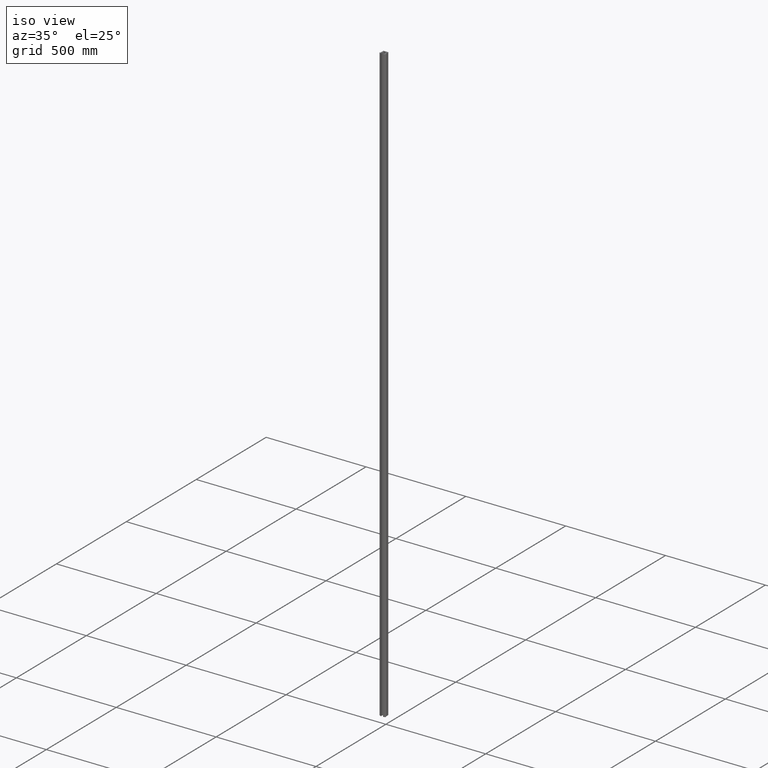
[diagram: clean part render]
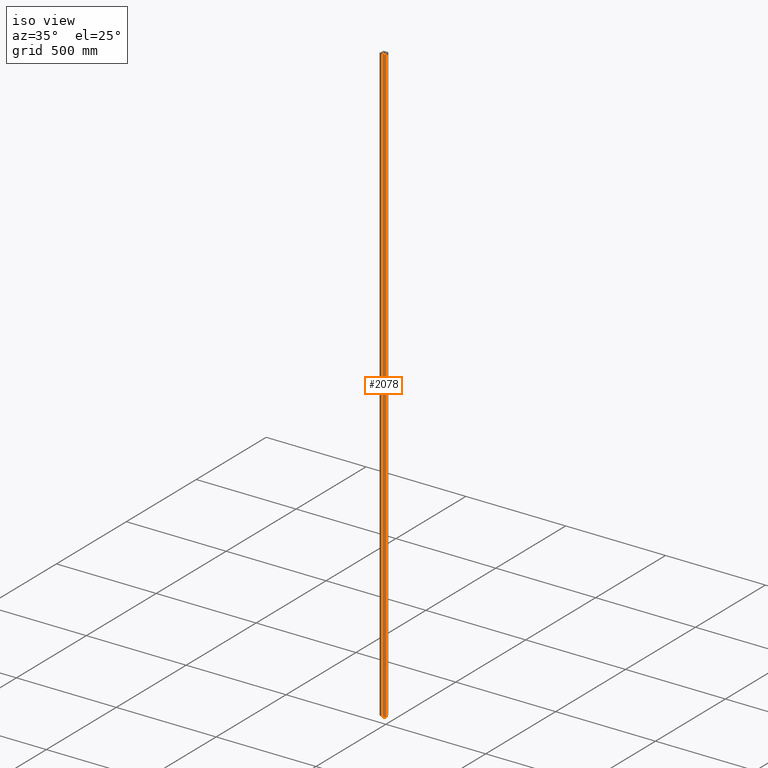
[diagram: same view with one face highlighted and labeled with its STEP entity id]
A machine part, iso view. The second image highlights one B-rep face of the part: STEP entity #2078.
In plain terms, the highlighted cylindrical surface (edge-blend (fillet) strip) has radius 15.3 mm, axis along (0, 0, -1).
Its self-contained STEP definition (entity closure, byte-faithful):
#218 = VERTEX_POINT ( 'NONE', #9190 ) ;
#1305 = CYLINDRICAL_SURFACE ( 'NONE', #21084, 15.29999999999999893 ) ;
#1972 = CARTESIAN_POINT ( 'NONE',  ( 4.543158562682331869, -11.19999999999999574, -1500.000000000000000 ) ) ;
#2078 = ADVANCED_FACE ( 'NONE', ( #17646 ), #1305, .T. ) ;
#2350 = ORIENTED_EDGE ( 'NONE', *, *, #15056, .F. ) ;
#2622 = CARTESIAN_POINT ( 'NONE',  ( 4.543158562682331869, -11.19999999999999574, 1500.000000000000000 ) ) ;
#3300 = DIRECTION ( 'NONE',  ( 0.000000000000000000, 0.000000000000000000, -1.000000000000000000 ) ) ;
#3930 = CIRCLE ( 'NONE', #5585, 15.30000000000000071 ) ;
#4412 = VERTEX_POINT ( 'NONE', #12121 ) ;
#5585 = AXIS2_PLACEMENT_3D ( 'NONE', #1972, #11803, #13375 ) ;
#7516 = CIRCLE ( 'NONE', #15628, 15.30000000000000071 ) ;
#8733 = DIRECTION ( 'NONE',  ( -0.000000000000000000, -0.000000000000000000, -1.000000000000000000 ) ) ;
#8780 = ORIENTED_EDGE ( 'NONE', *, *, #9931, .T. ) ;
#9190 = CARTESIAN_POINT ( 'NONE',  ( 4.674285183693181800, -26.49943808802343526, 1500.000000000000000 ) ) ;
#9931 = EDGE_CURVE ( 'NONE', #16608, #218, #7516, .T. ) ;
#10354 = EDGE_CURVE ( 'NONE', #218, #18435, #19270, .T. ) ;
#11738 = DIRECTION ( 'NONE',  ( -1.000000000000000000, -2.267612386897786884E-16, 0.000000000000000000 ) ) ;
#11803 = DIRECTION ( 'NONE',  ( -0.000000000000000000, -0.000000000000000000, -1.000000000000000000 ) ) ;
#12121 = CARTESIAN_POINT ( 'NONE',  ( 16.04594942167971183, -21.28839940001218878, -1500.000000000000000 ) ) ;
#12860 = ORIENTED_EDGE ( 'NONE', *, *, #19496, .F. ) ;
#13375 = DIRECTION ( 'NONE',  ( -1.000000000000000000, -2.267612386897786884E-16, 0.000000000000000000 ) ) ;
#14890 = VECTOR ( 'NONE', #20675, 1000.000000000000000 ) ;
#15056 = EDGE_CURVE ( 'NONE', #4412, #18435, #3930, .T. ) ;
#15369 = DIRECTION ( 'NONE',  ( 0.000000000000000000, 0.000000000000000000, -1.000000000000000000 ) ) ;
#15628 = AXIS2_PLACEMENT_3D ( 'NONE', #18287, #8733, #11738 ) ;
#16271 = CARTESIAN_POINT ( 'NONE',  ( 16.04594942167971183, -21.28839940001218878, 1500.000000000000000 ) ) ;
#16376 = ORIENTED_EDGE ( 'NONE', *, *, #10354, .T. ) ;
#16445 = CARTESIAN_POINT ( 'NONE',  ( 16.04594942167971183, -21.28839940001218878, 1500.000000000000000 ) ) ;
#16608 = VERTEX_POINT ( 'NONE', #16445 ) ;
#17029 = DIRECTION ( 'NONE',  ( 1.000000000000000000, 2.267612386897787377E-16, 0.000000000000000000 ) ) ;
#17234 = EDGE_LOOP ( 'NONE', ( #2350, #12860, #8780, #16376 ) ) ;
#17344 = CARTESIAN_POINT ( 'NONE',  ( 4.674285183693181800, -26.49943808802343526, 1500.000000000000000 ) ) ;
#17579 = LINE ( 'NONE', #16271, #20183 ) ;
#17646 = FACE_OUTER_BOUND ( 'NONE', #17234, .T. ) ;
#18287 = CARTESIAN_POINT ( 'NONE',  ( 4.543158562682331869, -11.19999999999999574, 1500.000000000000000 ) ) ;
#18435 = VERTEX_POINT ( 'NONE', #19634 ) ;
#19270 = LINE ( 'NONE', #17344, #14890 ) ;
#19496 = EDGE_CURVE ( 'NONE', #16608, #4412, #17579, .T. ) ;
#19634 = CARTESIAN_POINT ( 'NONE',  ( 4.674285183693181800, -26.49943808802343526, -1500.000000000000000 ) ) ;
#20183 = VECTOR ( 'NONE', #3300, 1000.000000000000000 ) ;
#20675 = DIRECTION ( 'NONE',  ( 0.000000000000000000, 0.000000000000000000, -1.000000000000000000 ) ) ;
#21084 = AXIS2_PLACEMENT_3D ( 'NONE', #2622, #15369, #17029 ) ;